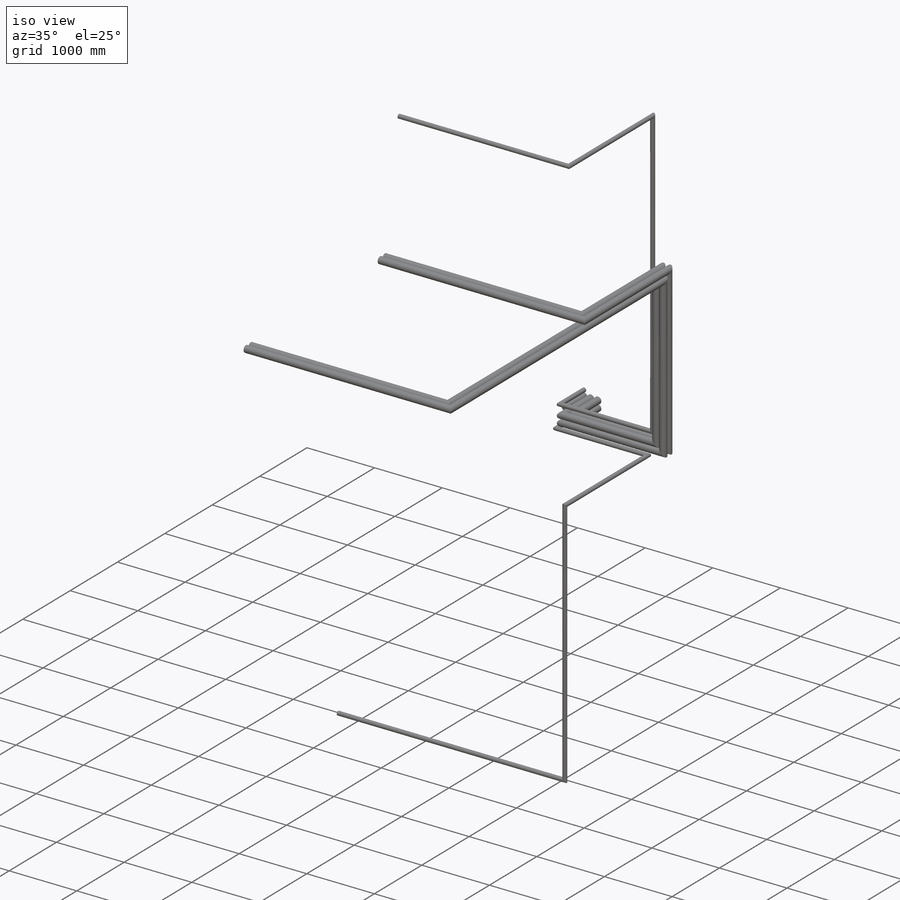
[diagram: iso view]
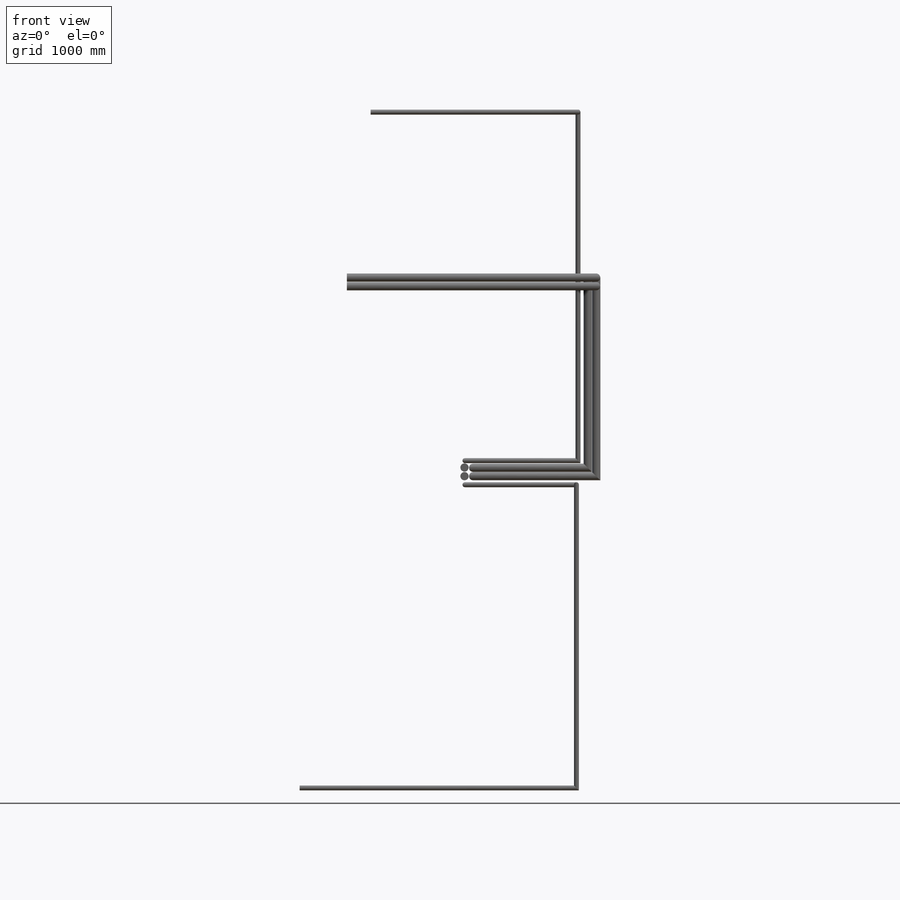
[diagram: front view]
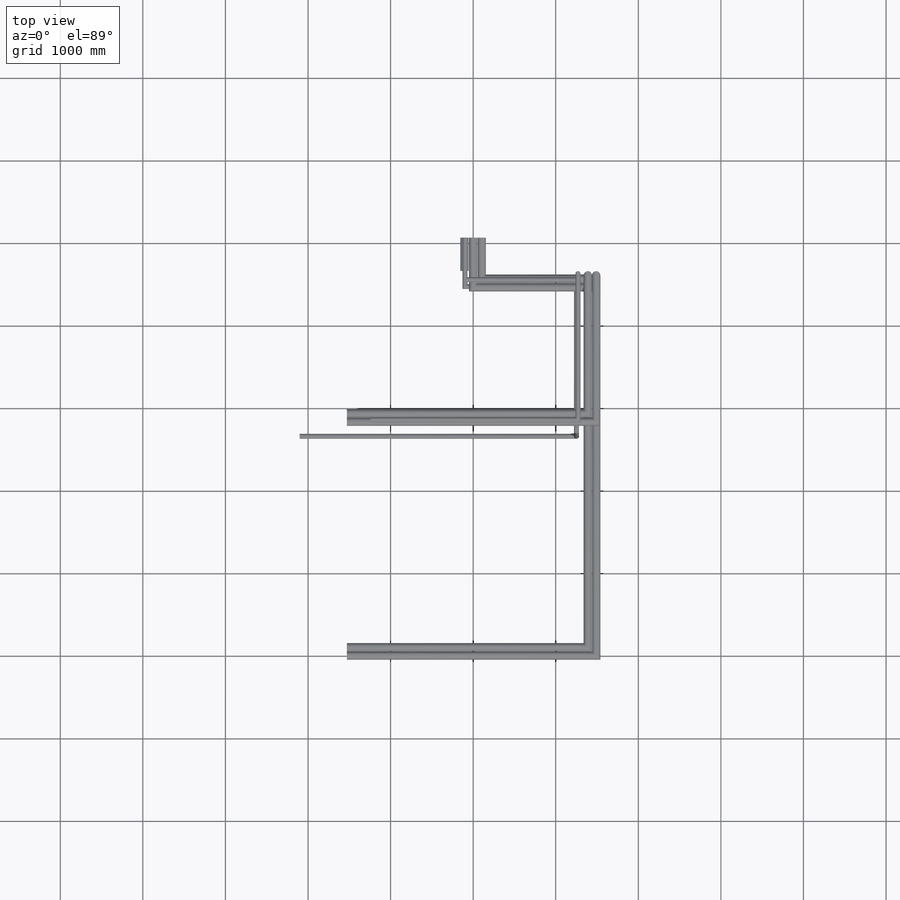
[diagram: top view]
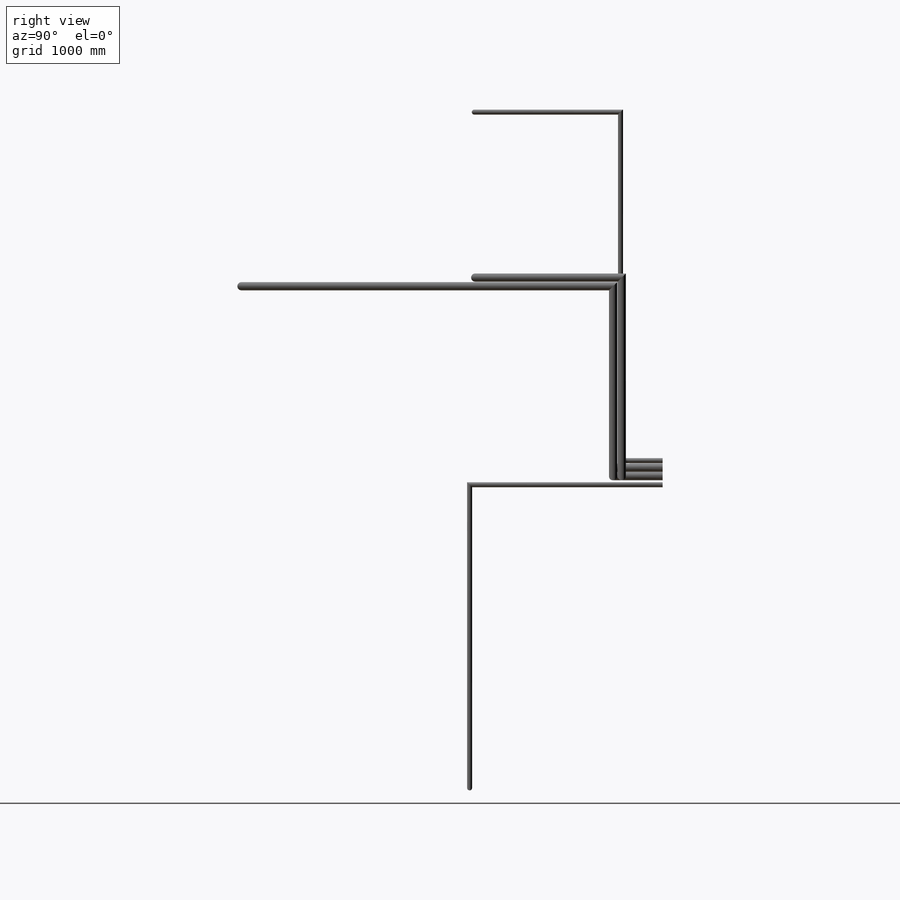
[diagram: right view]
SOLIDWORKS PART (.sldprt)
format: sldprt  version: not decoded by parser v0  size: 316,416 bytes
history: native  units: mm
features: sketch x12, sweep x5, extrude x2, material x1 (+12 scaffold rows collapsed)
feature tree (32):
  scaffold x12  (default folders/planes/origin — collapsed)
  material  "Material <not specified>"
  sketch  "Sketch1"  dims[c1.D1=100.0mm c1.D4=60.0mm c1.D5=60.0mm c2.D1=~31.533436mm c2.D2=~104.525175mm c2.D6=~249.291777mm c2.D7=~338.032072mm c3.D6=~270.425658mm c3.D7=~364.718815mm c4.D6=10.0mm c4.D7=10.0mm c4.D8=10.0mm c4.D9=10.0mm c4.D1=3.0 c4.D2=2.0]
  sketch  "3DSketch1"  dims[c1.D1=350.0mm c2.D1=1000.0mm c3.D1=2400.0mm c4.D1=3500.0mm c5.D1=~11598.443788mm c6.D1=~2130.790492mm c7.D1=~2130.790492mm c8.D1=600.0mm c8.D2=1400.0mm c8.D3=2300.0mm c8.D4=1490.0mm]
  sweep  "Sweep1"
  sketch  "Sketch2"  dims[D1=100.0mm]
  sketch  "3DSketch2"  dims[c1.D1=~1470.179128mm c2.D1=~1907.736629mm c3.D1=~571.445192mm c4.D1=~1515.844094mm c5.D1=~5442.006621mm c6.D1=~571.445192mm c6.D3=100.0mm c6.D2=2750.0mm c7.D1=1200.0mm]
  sweep  "Sweep3"
  sketch  "Sketch3"  dims[D1=100.0mm]
  sketch  "3DSketch3"  dims[c1.D1=~2649.164804mm c2.D1=~2766.671397mm c3.D1=~989.933307mm c4.D1=~2649.164804mm c4.D2=3000.0mm]
  sweep  "Sweep4"
  sketch  "Sketch4"  dims[D1=100.0mm D2=100.0mm D3=105.0mm]
  extrude  "Boss-Extrude1"  Depth=400mm
  sketch  "Sketch5"  dims[D1=60.0mm D2=60.0mm]
  extrude  "Boss-Extrude2"  Depth=400mm
  sketch  "3DSketch4"  dims[c1.D1=~703.238293mm c2.D1=~99.798732mm c3.D1=~110.490229mm c4.D1=~1876.058995mm c5.D1=~2037.272017mm c6.D1=~2002.259681mm c7.D1=~1962.688149mm c8.D1=~2500.377532mm c9.D1=~4880.94501mm c10.D1=4250.0mm c10.D2=1800.0mm c10.D3=1400.0mm]
  sketch  "Sketch6"  dims[D1=60.0mm]
  sweep  "Sweep5"
  sketch  "Sketch7"  dims[D1=60.0mm]
  sketch  "3DSketch5"  dims[c1.D1=~129.819503mm c2.D1=~2070.531483mm c3.D1=~3671.408199mm c4.D1=~2091.252132mm c5.D1=~2101.641487mm c6.D1=~1533.423322mm c7.D1=~2043.807721mm c7.D2=~2545.410636mm c8.D2=~413.926836mm c8.D1=~1809.71183mm c9.D1=~2328.894398mm c10.D1=~2498.50222mm c11.D1=1750.0mm c11.D2=~3671.408199mm c12.D2=1350.0mm]
  sweep  "Sweep6"
decode coverage: 14 of 19 modeling features carry decoded parameters
note: ~ marks probable driven/reference dimensions
summary: profile_refs inferred from adjacent sketches, not decoded
note: suppression state not decoded; provenance and decode notes live in map.json
